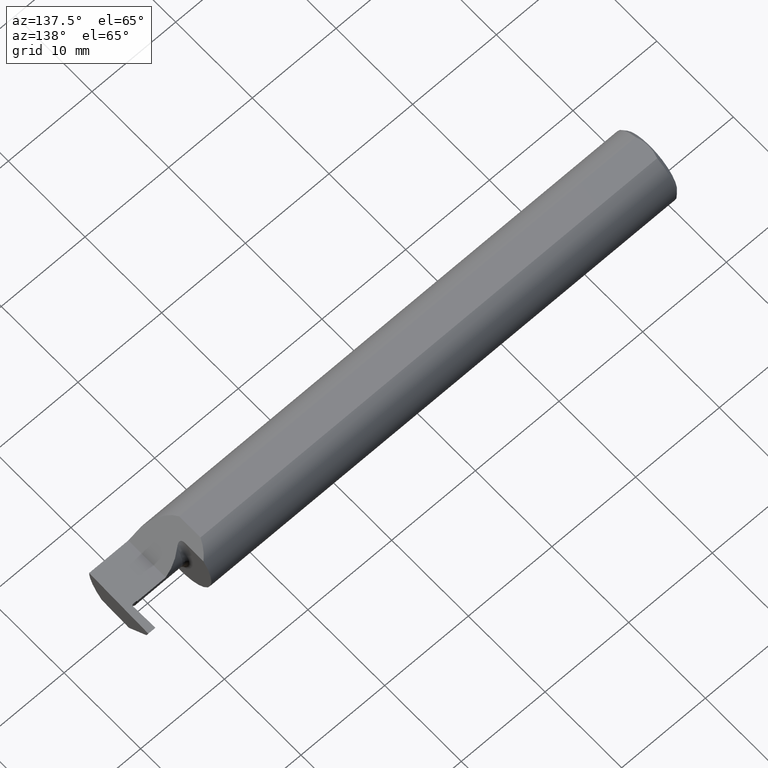
[diagram: clean part render]
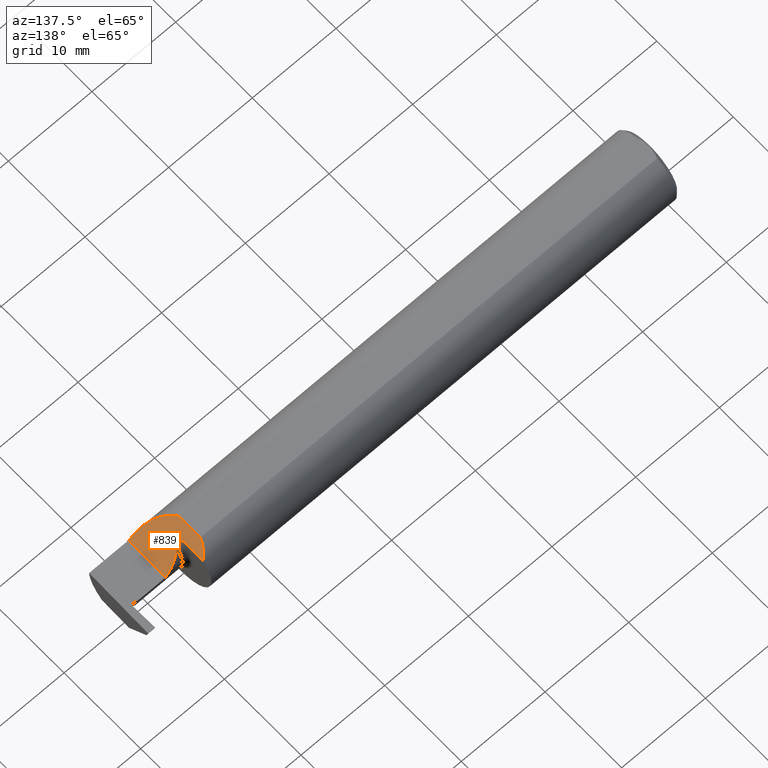
[diagram: same view with one face highlighted and labeled with its STEP entity id]
A machine part, auxiliary view. The second image highlights one B-rep face of the part: STEP entity #839.
In plain terms, the highlighted planar face has unit normal (-0.7071, 0, -0.7071).
Its self-contained STEP definition (entity closure, byte-faithful):
#6 = ORIENTED_EDGE ( 'NONE', *, *, #33, .F. ) ;
#22 = LINE ( 'NONE', #324, #886 ) ;
#33 = EDGE_CURVE ( 'NONE', #764, #788, #597, .T. ) ;
#34 = CARTESIAN_POINT ( 'NONE',  ( 2.205470178925820868, 0.009801298193312112800, 0.1045298210741795603 ) ) ;
#42 = PLANE ( 'NONE',  #207 ) ;
#46 = CARTESIAN_POINT ( 'NONE',  ( 2.212405726183429788, -8.261176361356368681E-06, 0.09759427381657130585 ) ) ;
#53 = CARTESIAN_POINT ( 'NONE',  ( 2.172651720989708490, 0.07823201029329630851, 0.1373482790102923123 ) ) ;
#54 = ORIENTED_EDGE ( 'NONE', *, *, #308, .F. ) ;
#73 = VERTEX_POINT ( 'NONE', #203 ) ;
#75 = VECTOR ( 'NONE', #652, 39.37007874015748143 ) ;
#97 = CARTESIAN_POINT ( 'NONE',  ( 2.219569099842571447, 0.0002640992857225947336, 0.09043090015742988319 ) ) ;
#98 = VERTEX_POINT ( 'NONE', #964 ) ;
#104 = CARTESIAN_POINT ( 'NONE',  ( 2.163900000000000823, -0.05497272050753899270, 0.1460999999999999799 ) ) ;
#114 = B_SPLINE_CURVE_WITH_KNOTS ( 'NONE', 3,
 ( #424, #546, #34, #634, #792, #566, #46, #351, #97, #400, #803, #578 ),
 .UNSPECIFIED., .F., .F.,
 ( 4, 2, 2, 2, 2, 4 ),
 ( 0.001292954658829955240, 0.001599031819399232817, 0.001752070399683868136, 0.001905108979968503456, 0.002211186140537772793, 0.002517263301107042130 ),
 .UNSPECIFIED. ) ;
#137 = VECTOR ( 'NONE', #589, 39.37007874015748143 ) ;
#203 = CARTESIAN_POINT ( 'NONE',  ( 2.310000000000000053, 0.03589999999999998748, 2.326828918379970872E-17 ) ) ;
#207 = AXIS2_PLACEMENT_3D ( 'NONE', #497, #649, #777 ) ;
#227 = CARTESIAN_POINT ( 'NONE',  ( 2.310000000000000053, -0.1560999999999999888, 2.326828918379970872E-17 ) ) ;
#228 = ORIENTED_EDGE ( 'NONE', *, *, #409, .T. ) ;
#235 = VERTEX_POINT ( 'NONE', #227 ) ;
#250 = CARTESIAN_POINT ( 'NONE',  ( 2.310000000000000053, -0.1560999999999999888, 2.326828918379970872E-17 ) ) ;
#287 = CARTESIAN_POINT ( 'NONE',  ( 2.229999999999999982, 0.006946863561492249567, 0.08000000000000061229 ) ) ;
#308 = EDGE_CURVE ( 'NONE', #788, #401, #114, .T. ) ;
#324 = CARTESIAN_POINT ( 'NONE',  ( 2.163900000000000823, -0.1561000000000000165, 0.1460999999999999799 ) ) ;
#336 = CARTESIAN_POINT ( 'NONE',  ( 2.205000000000000515, 0.01802142642814216072, 0.1050000000000006206 ) ) ;
#351 = CARTESIAN_POINT ( 'NONE',  ( 2.216678479843920968, -0.0007234681444185053724, 0.09332152015607918238 ) ) ;
#362 = CARTESIAN_POINT ( 'NONE',  ( 2.310000000000000053, -0.2000000000000000111, 2.326828918379970872E-17 ) ) ;
#393 = DIRECTION ( 'NONE',  ( 0.000000000000000000, -1.000000000000000000, 0.000000000000000000 ) ) ;
#398 = CARTESIAN_POINT ( 'NONE',  ( 2.205000000000000071, 0.1155084845368506419, 0.1050000000000006206 ) ) ;
#400 = CARTESIAN_POINT ( 'NONE',  ( 2.224970440424900886, 0.003042870002762883275, 0.08502955957509952811 ) ) ;
#401 = VERTEX_POINT ( 'NONE', #287 ) ;
#409 = EDGE_CURVE ( 'NONE', #235, #73, #511, .T. ) ;
#424 = CARTESIAN_POINT ( 'NONE',  ( 2.205000000000000515, 0.01802142642814216072, 0.1050000000000006206 ) ) ;
#447 = ORIENTED_EDGE ( 'NONE', *, *, #769, .T. ) ;
#449 = CARTESIAN_POINT ( 'NONE',  ( 2.242809217309687853, -0.1561000000000000165, 0.06719078269031264483 ) ) ;
#474 = CARTESIAN_POINT ( 'NONE',  ( 2.163900000000000823, -0.05497272050753899270, 0.1460999999999999799 ) ) ;
#486 = EDGE_CURVE ( 'NONE', #98, #764, #564, .T. ) ;
#497 = CARTESIAN_POINT ( 'NONE',  ( 2.310000000000000053, -0.2000000000000000111, 2.326828918379970872E-17 ) ) ;
#511 = LINE ( 'NONE', #362, #137 ) ;
#521 = CARTESIAN_POINT ( 'NONE',  ( 2.310000000000000053, 0.03589999999999998748, 2.326828918379970872E-17 ) ) ;
#546 = CARTESIAN_POINT ( 'NONE',  ( 2.205000000000000071, 0.01394011811222969736, 0.1050000000000005373 ) ) ;
#549 = CARTESIAN_POINT ( 'NONE',  ( 2.205000000000000071, 0.1155084845368506419, 0.1050000000000006206 ) ) ;
#564 =( BOUNDED_CURVE ( )  B_SPLINE_CURVE ( 3, ( #744, #53, #696, #549 ),
 .UNSPECIFIED., .F., .F. ) 
 B_SPLINE_CURVE_WITH_KNOTS ( ( 4, 4 ),
 ( 0.3598816721999159585, 0.8330178286033869117 ),
 .UNSPECIFIED. ) 
 CURVE ( )  GEOMETRIC_REPRESENTATION_ITEM ( )  RATIONAL_B_SPLINE_CURVE ( ( 1.000000000000000000, 0.9814320198864697753, 0.9814320198864697753, 1.000000000000000000 ) ) 
 REPRESENTATION_ITEM ( '' )  );
#566 = CARTESIAN_POINT ( 'NONE',  ( 2.210997640143628651, 0.0006487063506430517908, 0.09900235985637161062 ) ) ;
#572 = EDGE_CURVE ( 'NONE', #235, #793, #798, .T. ) ;
#578 = CARTESIAN_POINT ( 'NONE',  ( 2.229999999999999982, 0.006946863561492249567, 0.08000000000000061229 ) ) ;
#589 = DIRECTION ( 'NONE',  ( -0.000000000000000000, 1.000000000000000000, -0.000000000000000000 ) ) ;
#595 = CARTESIAN_POINT ( 'NONE',  ( 2.280465398849123471, 0.03590000000000002217, 0.02953460115087711002 ) ) ;
#597 = LINE ( 'NONE', #671, #75 ) ;
#623 = ORIENTED_EDGE ( 'NONE', *, *, #486, .F. ) ;
#626 = EDGE_CURVE ( 'NONE', #401, #73, #879, .T. ) ;
#634 = CARTESIAN_POINT ( 'NONE',  ( 2.207617573287391277, 0.004485170111976941737, 0.1023824267126085680 ) ) ;
#649 = DIRECTION ( 'NONE',  ( -0.7071067811865492381, 0.000000000000000000, -0.7071067811865459074 ) ) ;
#652 = DIRECTION ( 'NONE',  ( 0.000000000000000000, -1.000000000000000000, 0.000000000000000000 ) ) ;
#660 = CARTESIAN_POINT ( 'NONE',  ( 2.229999999999999982, 0.006946863561492249567, 0.08000000000000061229 ) ) ;
#671 = CARTESIAN_POINT ( 'NONE',  ( 2.205000000000000071, -0.2000000000000000111, 0.1050000000000006206 ) ) ;
#686 = EDGE_LOOP ( 'NONE', ( #6, #623, #447, #944, #228, #760, #54 ) ) ;
#696 = CARTESIAN_POINT ( 'NONE',  ( 2.186610915026993229, 0.09879236251423235970, 0.1233890849730072958 ) ) ;
#715 = FACE_OUTER_BOUND ( 'NONE', #686, .T. ) ;
#744 = CARTESIAN_POINT ( 'NONE',  ( 2.163900000000000823, 0.05497272050753900657, 0.1460999999999999799 ) ) ;
#760 = ORIENTED_EDGE ( 'NONE', *, *, #626, .F. ) ;
#764 = VERTEX_POINT ( 'NONE', #398 ) ;
#769 = EDGE_CURVE ( 'NONE', #98, #793, #22, .T. ) ;
#777 = DIRECTION ( 'NONE',  ( -0.7071067811865459074, 0.000000000000000000, 0.7071067811865492381 ) ) ;
#788 = VERTEX_POINT ( 'NONE', #336 ) ;
#792 = CARTESIAN_POINT ( 'NONE',  ( 2.208597677059192854, 0.002903333528360323504, 0.1014023229408076571 ) ) ;
#793 = VERTEX_POINT ( 'NONE', #104 ) ;
#798 =( BOUNDED_CURVE ( )  B_SPLINE_CURVE ( 3, ( #250, #449, #904, #474 ),
 .UNSPECIFIED., .F., .F. ) 
 B_SPLINE_CURVE_WITH_KNOTS ( ( 4, 4 ),
 ( 4.712388980384689674, 5.923303634979670385 ),
 .UNSPECIFIED. ) 
 CURVE ( )  GEOMETRIC_REPRESENTATION_ITEM ( )  RATIONAL_B_SPLINE_CURVE ( ( 1.000000000000000000, 0.8814946008038386793, 0.8814946008038386793, 1.000000000000000000 ) ) 
 REPRESENTATION_ITEM ( '' )  );
#803 = CARTESIAN_POINT ( 'NONE',  ( 2.227522175903073887, 0.004883017638651836190, 0.08247782409692715200 ) ) ;
#839 = ADVANCED_FACE ( 'NONE', ( #715 ), #42, .F. ) ;
#879 =( BOUNDED_CURVE ( )  B_SPLINE_CURVE ( 3, ( #660, #903, #595, #521 ),
 .UNSPECIFIED., .F., .F. ) 
 B_SPLINE_CURVE_WITH_KNOTS ( ( 4, 4 ),
 ( 0.8762980611683343080, 1.570796326794896558 ),
 .UNSPECIFIED. ) 
 CURVE ( )  GEOMETRIC_REPRESENTATION_ITEM ( )  RATIONAL_B_SPLINE_CURVE ( ( 1.000000000000000000, 0.9602082824955224805, 0.9602082824955224805, 1.000000000000000000 ) ) 
 REPRESENTATION_ITEM ( '' )  );
#886 = VECTOR ( 'NONE', #393, 39.37007874015748143 ) ;
#903 = CARTESIAN_POINT ( 'NONE',  ( 2.252693646456652043, 0.02584900829805373418, 0.05730635354334956411 ) ) ;
#904 = CARTESIAN_POINT ( 'NONE',  ( 2.187562140406902333, -0.1178591609371013593, 0.1224378595930983027 ) ) ;
#944 = ORIENTED_EDGE ( 'NONE', *, *, #572, .F. ) ;
#964 = CARTESIAN_POINT ( 'NONE',  ( 2.163900000000000823, 0.05497272050753900657, 0.1460999999999999799 ) ) ;